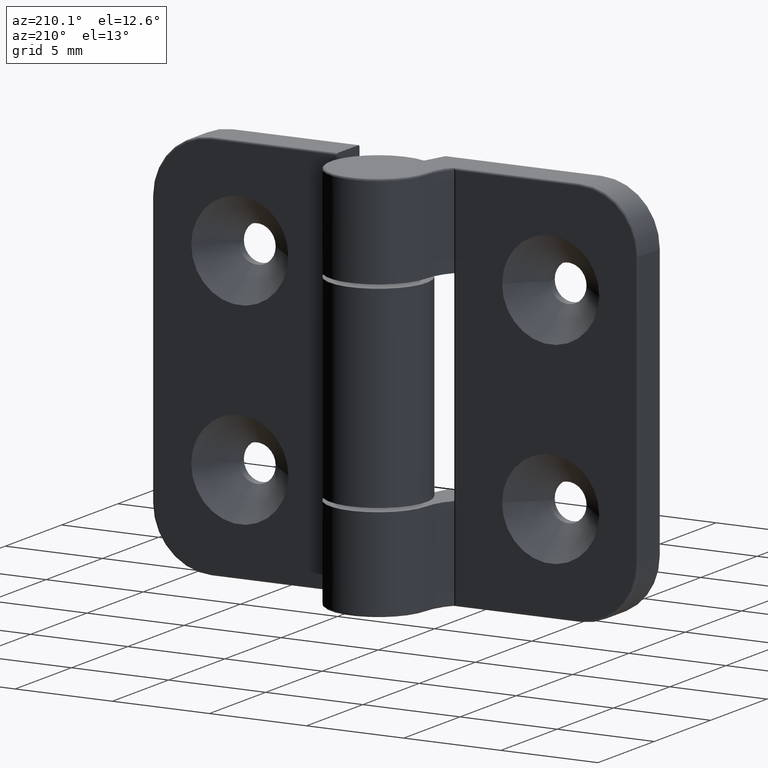
[diagram: clean part render]
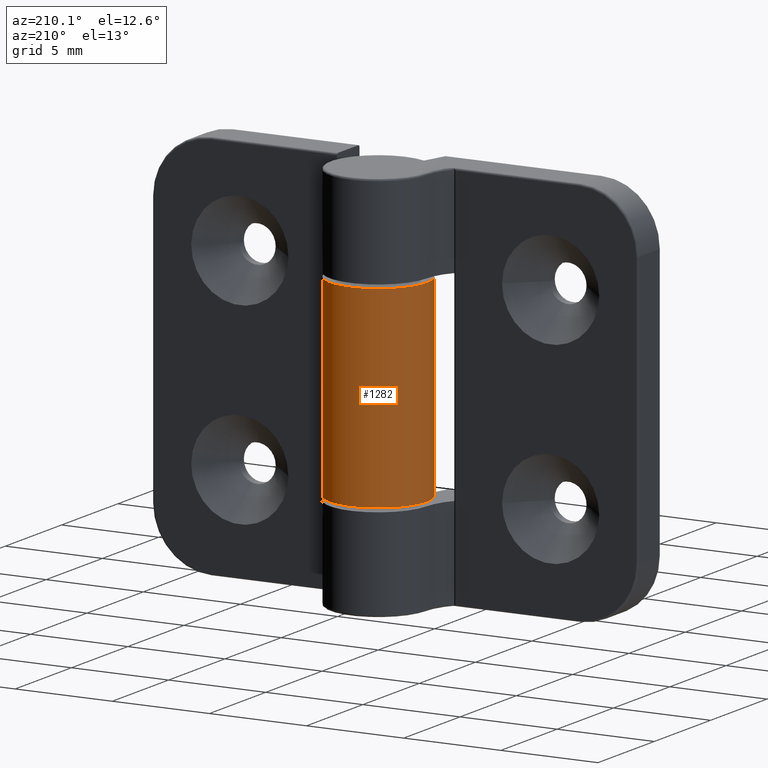
[diagram: same view with one face highlighted and labeled with its STEP entity id]
A machine part, auxiliary view. The second image highlights one B-rep face of the part: STEP entity #1282.
In plain terms, the highlighted cylindrical surface (partial cylindrical patch) has radius 2.5 mm, axis along (0, 0, -1).
Its self-contained STEP definition (entity closure, byte-faithful):
#164=FACE_OUTER_BOUND('',#261,.T.);
#261=EDGE_LOOP('',(#1084,#1085,#1086,#1087));
#359=LINE('',#2286,#435);
#362=LINE('',#2291,#438);
#435=VECTOR('',#1796,10.);
#438=VECTOR('',#1803,10.);
#508=CIRCLE('',#1421,2.5);
#516=CIRCLE('',#1432,2.5);
#614=VERTEX_POINT('',#2241);
#615=VERTEX_POINT('',#2243);
#630=VERTEX_POINT('',#2278);
#631=VERTEX_POINT('',#2280);
#768=EDGE_CURVE('',#615,#614,#508,.T.);
#786=EDGE_CURVE('',#631,#630,#516,.T.);
#789=EDGE_CURVE('',#630,#615,#359,.T.);
#792=EDGE_CURVE('',#614,#631,#362,.T.);
#1084=ORIENTED_EDGE('',*,*,#768,.T.);
#1085=ORIENTED_EDGE('',*,*,#792,.T.);
#1086=ORIENTED_EDGE('',*,*,#786,.T.);
#1087=ORIENTED_EDGE('',*,*,#789,.T.);
#1214=CYLINDRICAL_SURFACE('',#1437,2.5);
#1282=ADVANCED_FACE('',(#164),#1214,.T.);
#1421=AXIS2_PLACEMENT_3D('',#2244,#1756,#1757);
#1432=AXIS2_PLACEMENT_3D('',#2281,#1788,#1789);
#1437=AXIS2_PLACEMENT_3D('',#2290,#1801,#1802);
#1756=DIRECTION('center_axis',(0.,0.,1.));
#1757=DIRECTION('ref_axis',(1.,0.,0.));
#1788=DIRECTION('center_axis',(0.,0.,-1.));
#1789=DIRECTION('ref_axis',(1.,0.,0.));
#1796=DIRECTION('',(0.,0.,-1.));
#1801=DIRECTION('center_axis',(0.,0.,1.));
#1802=DIRECTION('ref_axis',(1.,0.,0.));
#1803=DIRECTION('',(0.,0.,1.));
#2241=CARTESIAN_POINT('',(-2.5,3.5,-5.));
#2243=CARTESIAN_POINT('',(-1.12964837039266,1.26977701579658,-5.));
#2244=CARTESIAN_POINT('Origin',(0.,3.5,-5.));
#2278=CARTESIAN_POINT('',(-1.12964837039266,1.26977701579658,5.));
#2280=CARTESIAN_POINT('',(-2.5,3.5,5.));
#2281=CARTESIAN_POINT('Origin',(0.,3.5,5.));
#2286=CARTESIAN_POINT('',(-1.12964837039266,1.26977701579658,0.));
#2290=CARTESIAN_POINT('Origin',(0.,3.5,0.));
#2291=CARTESIAN_POINT('',(-2.5,3.5,0.));